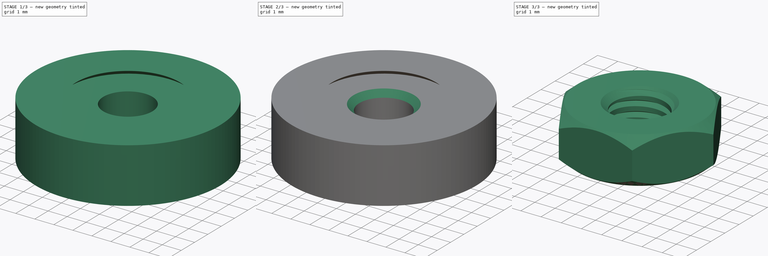
[diagram: build sequence overview — one tinted view per stage of 3, left to right]
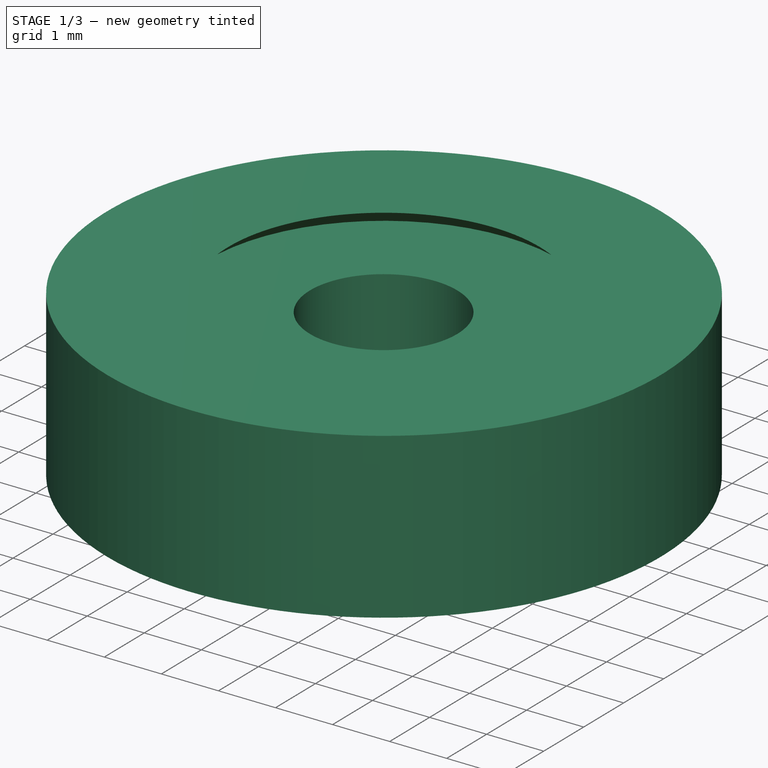
[diagram: stage 1 of 3 — iso view after this stage's code; geometry added in this stage tinted green]
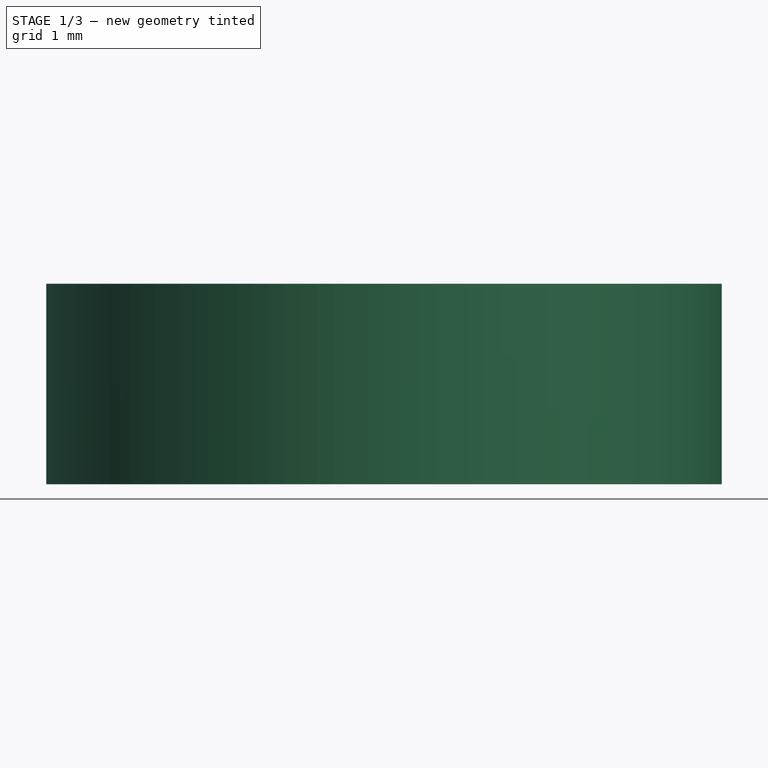
[diagram: stage 1 of 3 — front view after this stage's code; geometry added in this stage tinted green]
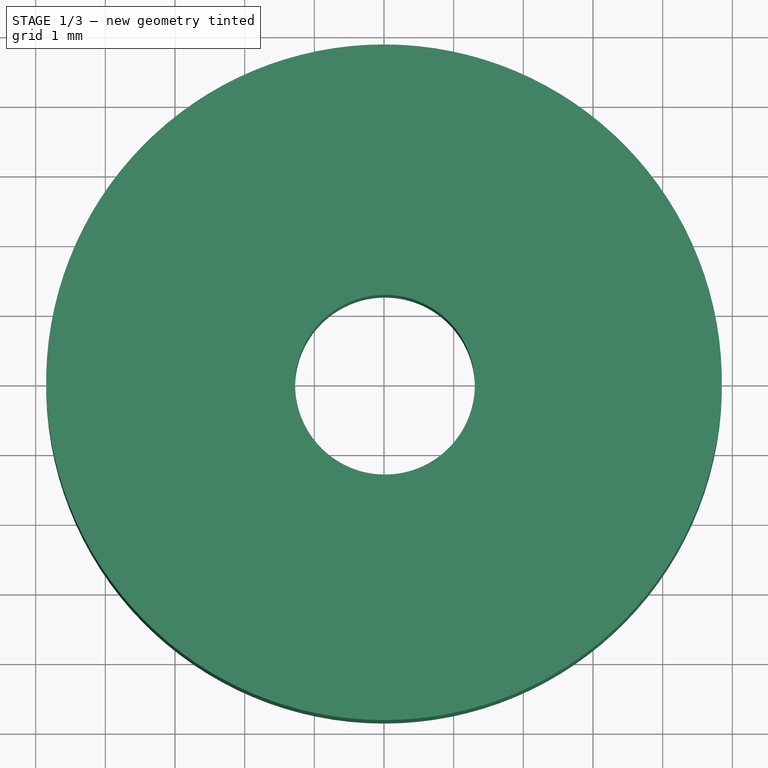
[diagram: stage 1 of 3 — top view after this stage's code; geometry added in this stage tinted green]
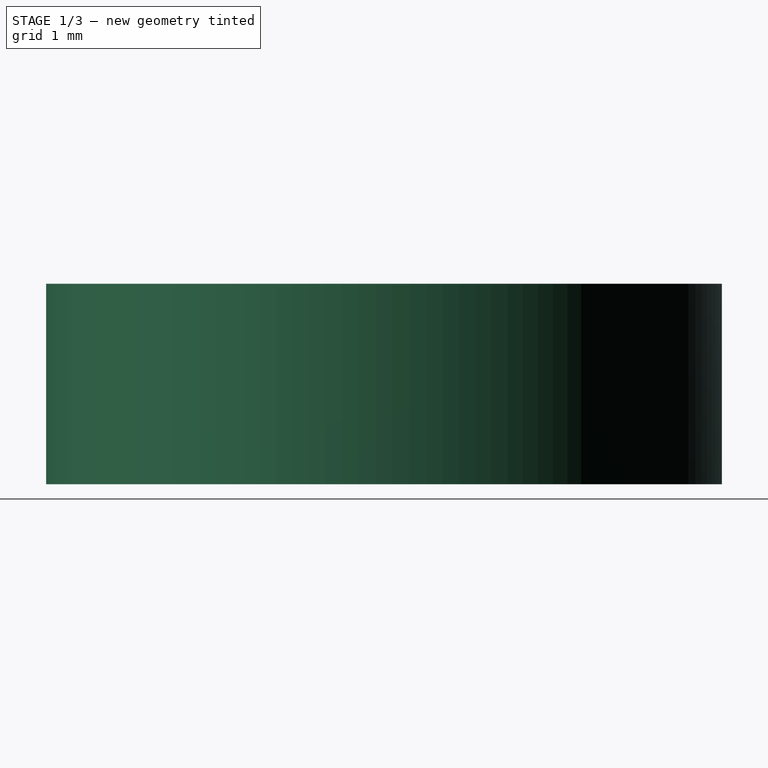
[diagram: stage 1 of 3 — right view after this stage's code; geometry added in this stage tinted green]
FCSTD DOCUMENT  (FreeCAD 0.18R16131 (Git))
Label: Tuerca M3
License: Public Domain
LicenseURL: http://en.wikipedia.org/wiki/Public_domain
objects: Sketcher::SketchObject×2, Part::Feature×2, PartDesign::Body×2, Part::Cut×2, PartDesign::Pad×1, Part::Chamfer×1, PartDesign::Revolution×1, App::DocumentObjectGroup×1
note: 13 computed .brp shape members not serialized (recipe doc carries the construction recipe); baked Part::Feature solids carry a one-line shape summary decoded from their .brp

FEATURE [Sketcher::SketchObject] Sketch020
  MapMode = 5
  Support = -> [XY_Plane285]
  sketch-geometry (8):
    g0: LineSegment StartX=1.81667 StartY=3.14656 StartZ=0 EndX=-1.81667 EndY=3.14656 EndZ=0
    g1: LineSegment StartX=-1.81667 StartY=3.14656 StartZ=0 EndX=-3.63333 EndY=4e-16 EndZ=0
    g2: LineSegment StartX=-3.63333 StartY=4e-16 StartZ=0 EndX=-1.81667 EndY=-3.14656 EndZ=0
    g3: LineSegment StartX=-1.81667 StartY=-3.14656 StartZ=0 EndX=1.81667 EndY=-3.14656 EndZ=0
    g4: LineSegment StartX=1.81667 StartY=-3.14656 StartZ=0 EndX=3.63333 EndY=-4e-16 EndZ=0
    g5: LineSegment StartX=3.63333 StartY=-4e-16 StartZ=0 EndX=1.81667 EndY=3.14656 EndZ=0
    g6: Circle [constr] CenterX=0 CenterY=0 CenterZ=0 NormalX=0 NormalY=0 NormalZ=1 AngleXU=0 Radius=3.63333
    g7: Circle CenterX=0.014236 CenterY=-0.02997 CenterZ=0 NormalX=0 NormalY=0 NormalZ=1 AngleXU=0 Radius=1.29
  constraints (17):
    c: Coincident(g0,g1)
    c: Coincident(g1,g2)
    c: Coincident(g2,g3)
    c: Coincident(g3,g4)
    c: Coincident(g4,g5)
    c: Coincident(g5,g0)
    c: Equal(g0, g1-g5) x5
    c: PointOnObject(g0,g6)
    c: PointOnObject(g1,g6)
    c: PointOnObject(g2,g6)
    c: PointOnObject(g3,g6)
    c: PointOnObject(g4,g6)
    c: PointOnObject(g5,g6)
    c: Coincident(g6,g-1)
    c: DistanceX(g1,g0) = 5.45
    c: Horizontal(g0)
    c: Radius(g7) = 1.29
FEATURE [Sketcher::SketchObject] Sketch024
  Placement = pos=(0,0,0) rot=(0.57735,0.57735,0.57735;2.0944rad)
  sketch-geometry (6):
    g0: LineSegment StartX=2.73 StartY=2.58671 StartZ=0 EndX=3.85 EndY=1.64691 EndZ=0
    g1: LineSegment StartX=3.85 StartY=1.64691 StartZ=0 EndX=3.85 EndY=0.646915 EndZ=0
    g2: LineSegment StartX=3.85 StartY=0.646915 StartZ=0 EndX=2.73 EndY=-0.292877 EndZ=0
    g3: LineSegment StartX=2.73 StartY=-0.292877 StartZ=0 EndX=4.85 EndY=-0.292877 EndZ=0
    g4: LineSegment StartX=4.85 StartY=-0.292877 StartZ=0 EndX=4.85 EndY=2.58671 EndZ=0
    g5: LineSegment StartX=4.85 StartY=2.58671 StartZ=0 EndX=2.73 EndY=2.58671 EndZ=0
  constraints (17):
    c: Coincident(g0,g1)
    c: Coincident(g1,g2)
    c: Coincident(g2,g3)
    c: Horizontal(g3)
    c: Coincident(g3,g4)
    c: Coincident(g4,g5)
    c: Coincident(g5,g0)
    c: Horizontal(g5)
    c: Vertical(g4)
    c: Vertical(g1)
    c: Angle(g0,g5) = 0.698132
    c: Equal(g3,g5)
    c: Equal(g0,g2)
    c: DistanceX(g0,g4) = 1
    c: DistanceY(g1,g1) = 1
    c: DistanceX(g2,g1) = 1.12
    c: DistanceX(g-1,g1) = 3.85
FEATURE [Part::Feature] Cut_solid  label="Tuerca (Solid)"
  shape: bbox 7.267 x 7.267 x 2.962 mm, 23 faces (baked)
FEATURE [PartDesign::Pad] Pad007
  Length = 2.3
  Length2 = 100
  Profile = -> Sketch020
  Refine = true
  Type = 0
FEATURE [PartDesign::Body] Body001  label="Cuerpo Tuerca M3"
  Group = -> [Sketch020,Pad007]
  Origin = -> Origin285
  Tip = -> Pad007
FEATURE [Part::Feature] Cut008001  label="copia tornillo simple"
  shape: bbox 5.476 x 5.4 x 14.7 mm, 88 faces (baked)
FEATURE [PartDesign::Revolution] Revolution001
  Angle = 360
  Axis = (0,0,1)
  Base = (0,0,0)
  Placement = pos=(0,0,0) rot=(0.57735,0.57735,0.57735;2.0944rad)
  Profile = -> Sketch024
  ReferenceAxis = -> Sketch024 [V_Axis]
  Refine = true
  Reversed = true
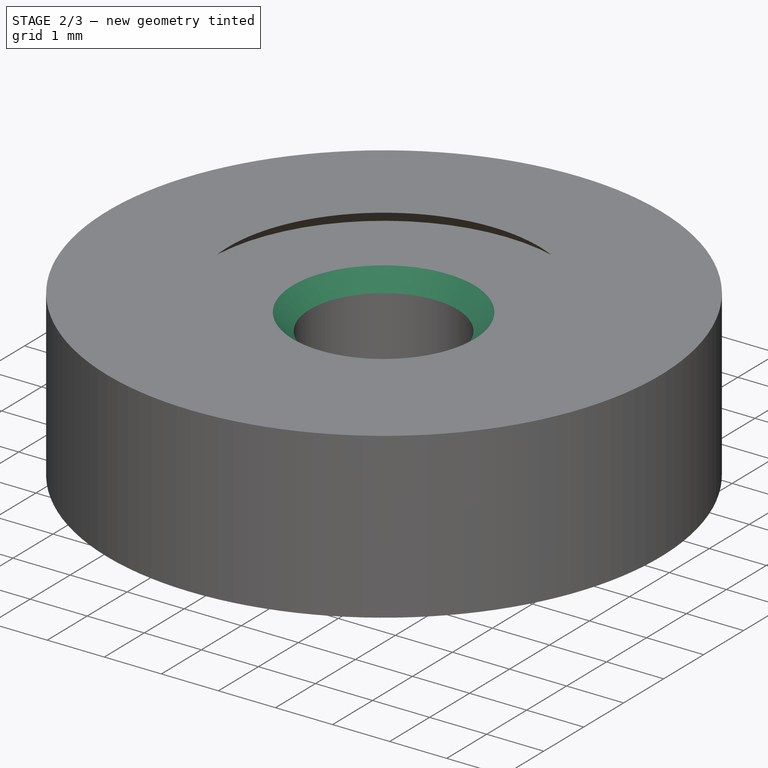
[diagram: stage 2 of 3 — iso view after this stage's code; geometry added in this stage tinted green]
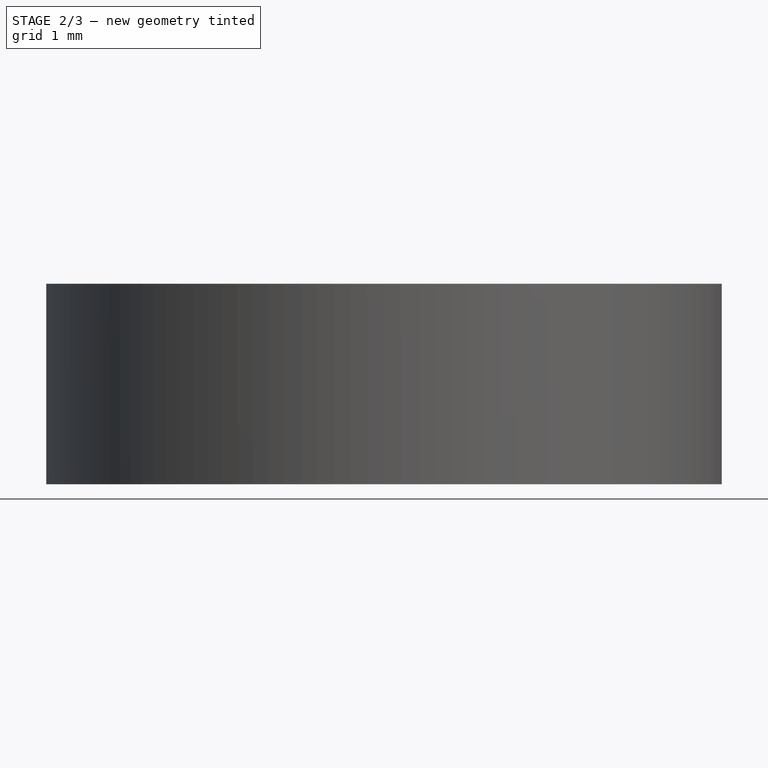
[diagram: stage 2 of 3 — front view after this stage's code; geometry added in this stage tinted green]
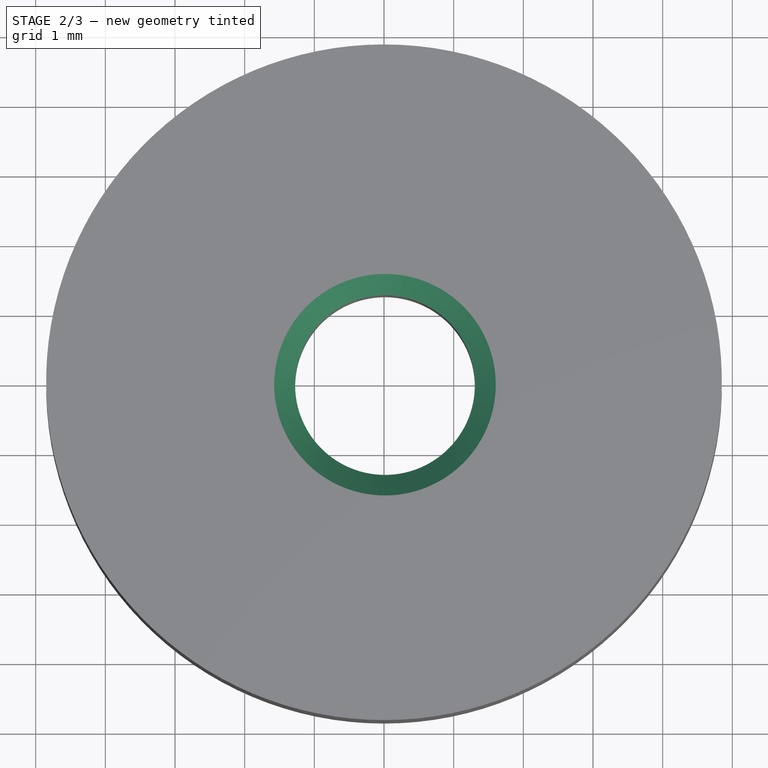
[diagram: stage 2 of 3 — top view after this stage's code; geometry added in this stage tinted green]
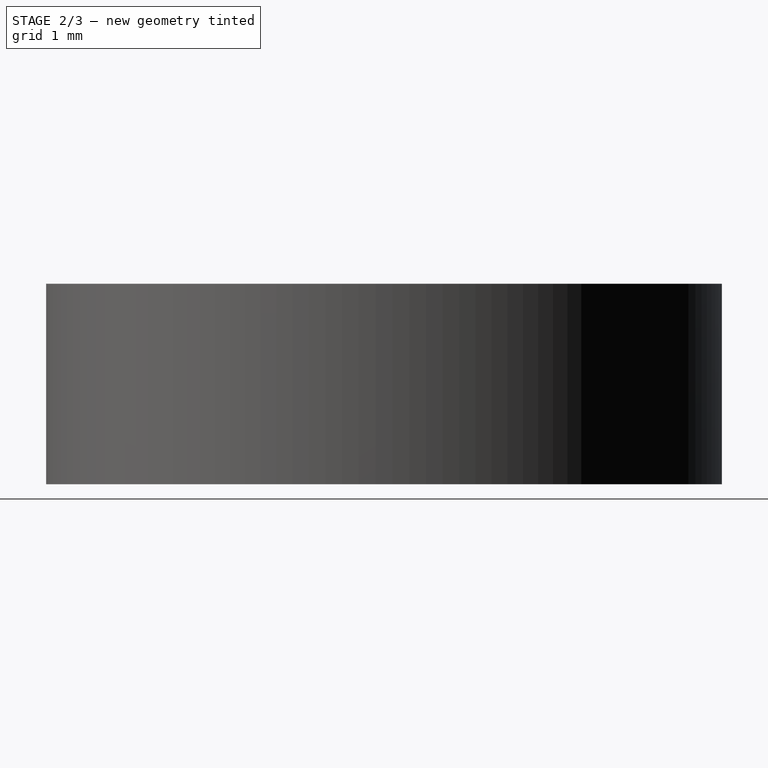
[diagram: stage 2 of 3 — right view after this stage's code; geometry added in this stage tinted green]
FEATURE [Part::Chamfer] Chamfer
  Base = -> Pad007
  Edges = 2 edges r=0.3: [Edge20,Edge21]
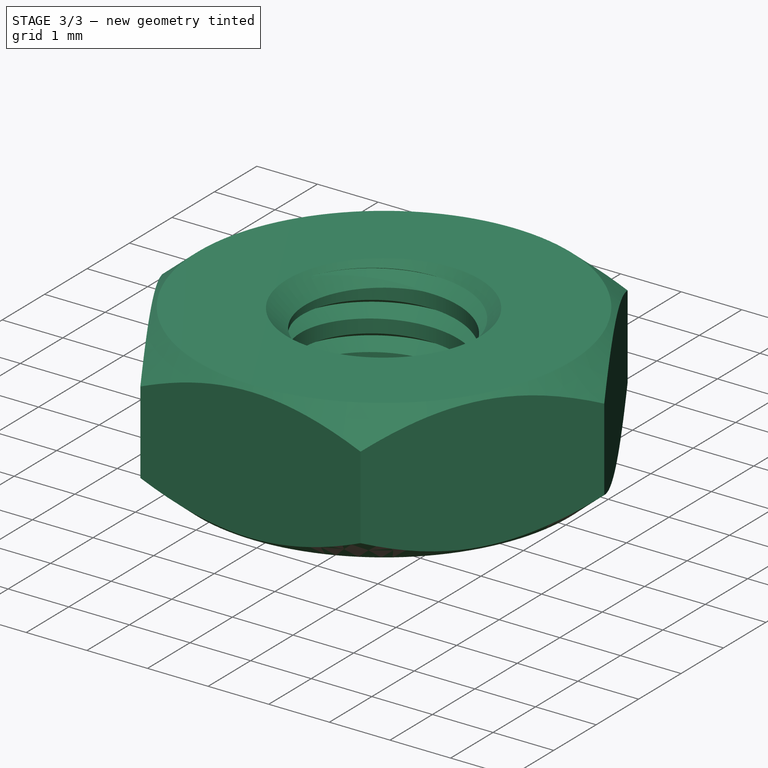
[diagram: stage 3 of 3 — iso view after this stage's code; geometry added in this stage tinted green]
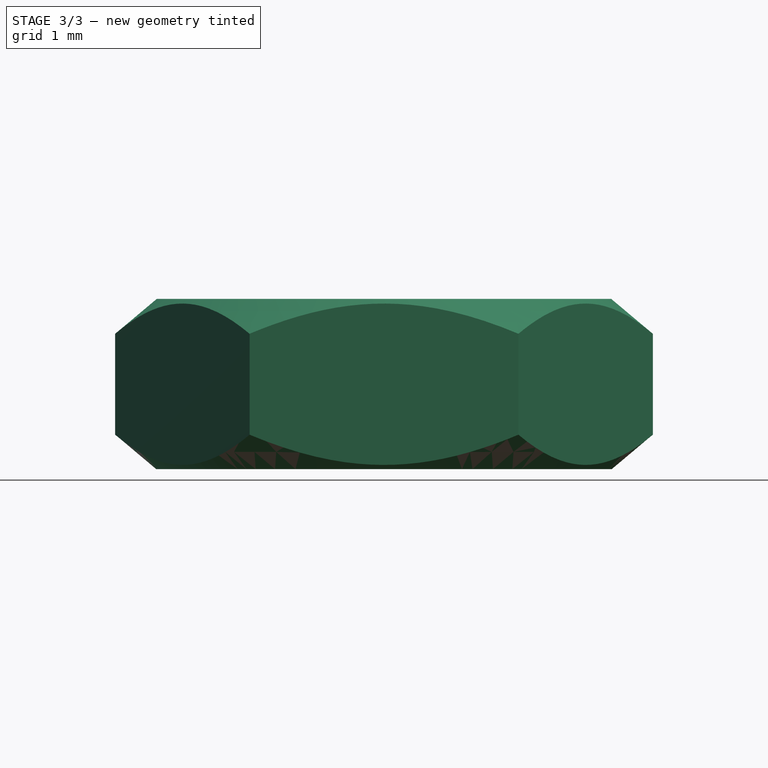
[diagram: stage 3 of 3 — front view after this stage's code; geometry added in this stage tinted green]
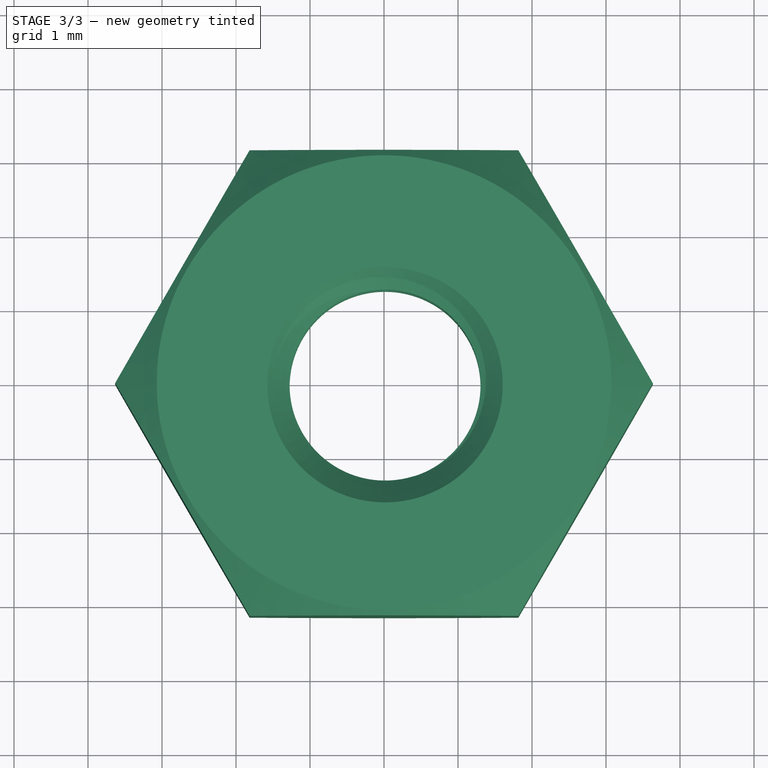
[diagram: stage 3 of 3 — top view after this stage's code; geometry added in this stage tinted green]
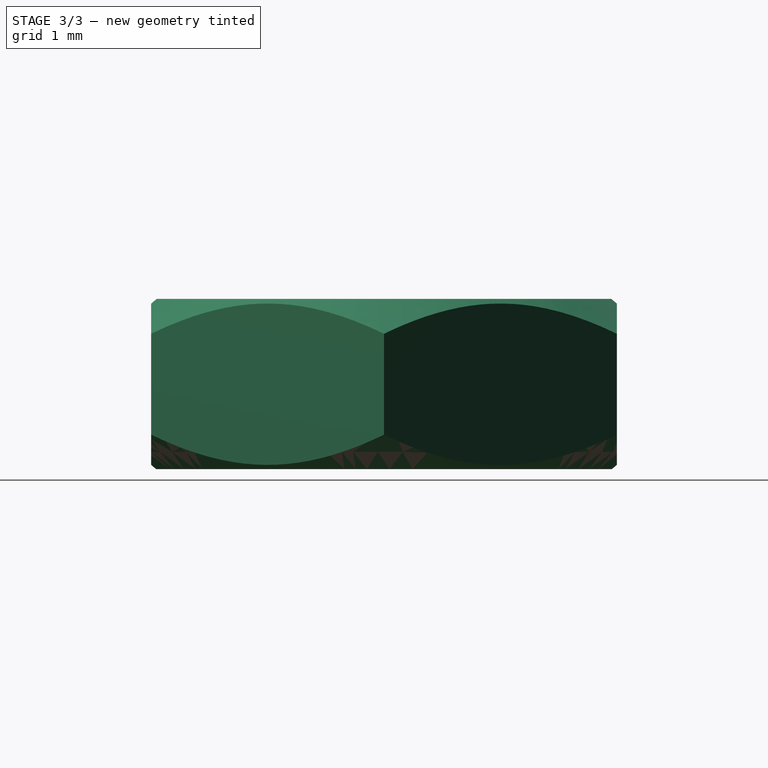
[diagram: stage 3 of 3 — right view after this stage's code; geometry added in this stage tinted green]
FEATURE [Part::Cut] Cut007  label="Tuerca M3"
  Base = -> Chamfer
  Placement = pos=(0,0,2) rot=(0,0,1;0rad)
  Refine = true
  Tool = -> Revolution001
FEATURE [Part::Cut] Cut  label="Tuerca"
  Base = -> Cut007
  Refine = true
  Tool = -> Cut008001
FEATURE [PartDesign::Body] Body003  label="Rebaje tuerca M3"
  Group = -> [Sketch024,Revolution001]
  Origin = -> Origin287
  Tip = -> Revolution001
FEATURE [App::DocumentObjectGroup] Group003  label="SRC Tuerca M3"
  Group = -> [Body001,Body003,Cut]
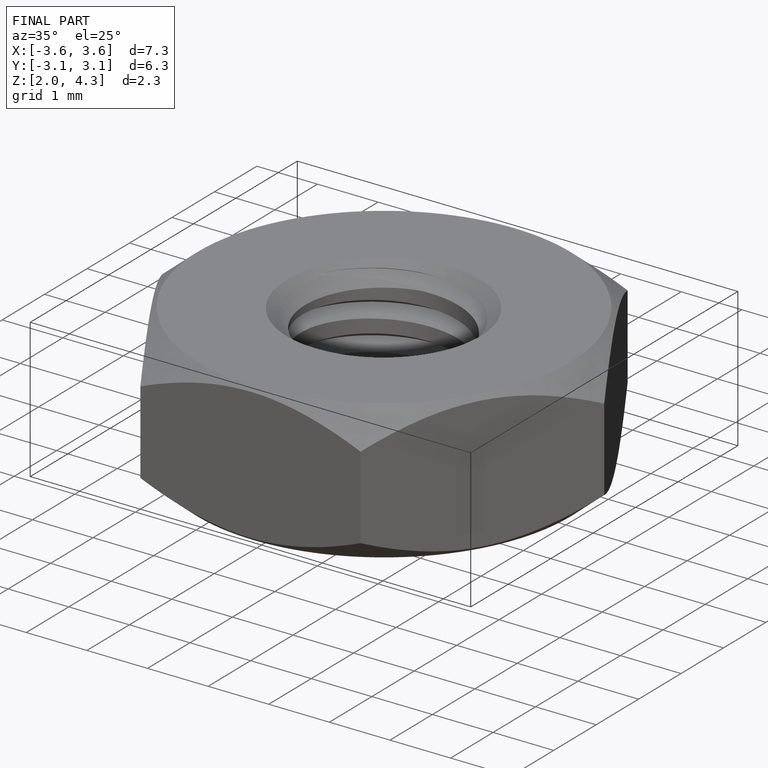
[diagram: finished part — iso view with bounding-box wireframe]
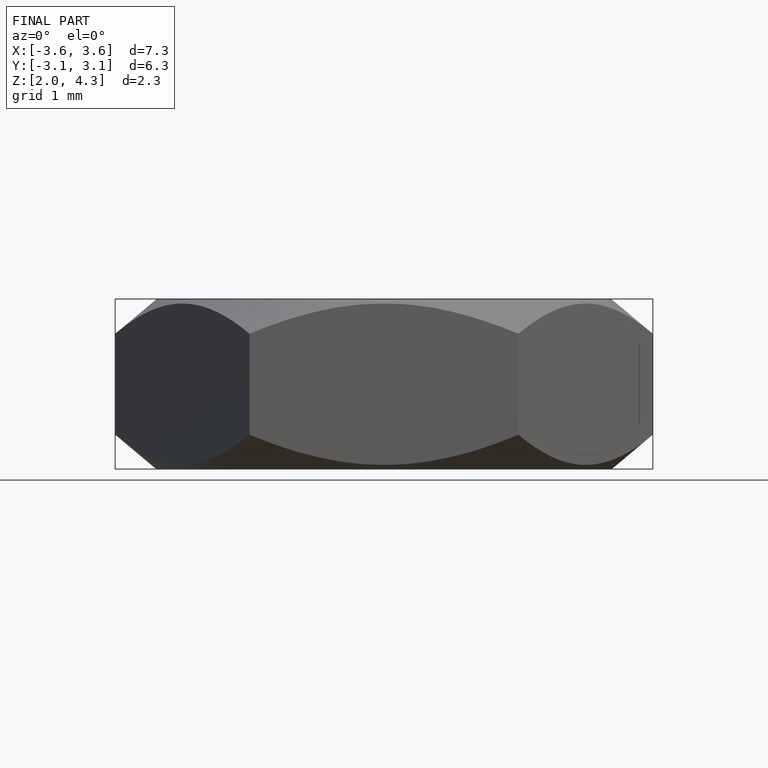
[diagram: finished part — front view with bounding-box wireframe]
